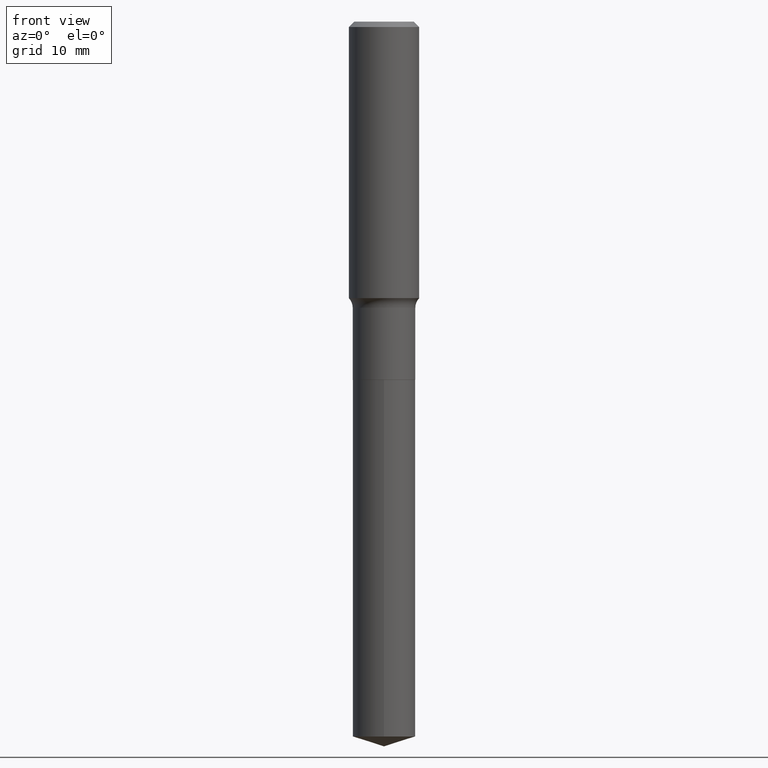
[diagram: clean part render]
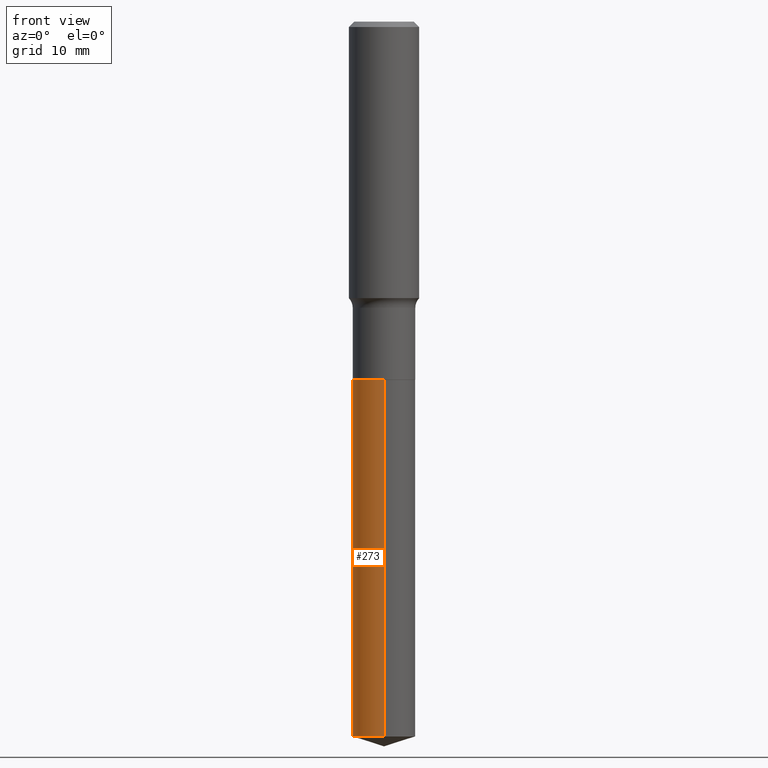
[diagram: same view with one face highlighted and labeled with its STEP entity id]
A machine part, front view. The second image highlights one B-rep face of the part: STEP entity #273.
In plain terms, the highlighted cylindrical surface (edge-blend (fillet) strip) has radius 4.4501 mm, axis along (-0, 0, 1).
Its self-contained STEP definition (entity closure, byte-faithful):
#9 = ORIENTED_EDGE ( 'NONE', *, *, #379, .F. ) ;
#32 = LINE ( 'NONE', #33, #176 ) ;
#33 = CARTESIAN_POINT ( 'NONE',  ( 1.244870873051744200E-15, 0.1751999999999929725, -2.003900000000000237 ) ) ;
#67 = CARTESIAN_POINT ( 'NONE',  ( 4.900474940714395139E-29, -6.996579454907778893E-15, -2.003899999999999793 ) ) ;
#75 = DIRECTION ( 'NONE',  ( -6.982962677686265133E-15, -1.000000000000000000, 3.118547937972903315E-15 ) ) ;
#82 = VERTEX_POINT ( 'NONE', #305 ) ;
#87 = DIRECTION ( 'NONE',  ( -2.445552792741590533E-29, 3.491361065314085564E-15, 1.000000000000000000 ) ) ;
#95 = DIRECTION ( 'NONE',  ( -2.445552792741590533E-29, 3.491361065314085564E-15, 1.000000000000000000 ) ) ;
#139 = CARTESIAN_POINT ( 'NONE',  ( 4.900474940714395139E-29, -6.996579454907778893E-15, -2.003899999999999793 ) ) ;
#153 = AXIS2_PLACEMENT_3D ( 'NONE', #458, #452, #75 ) ;
#176 = VECTOR ( 'NONE', #95, 39.37007874015748143 ) ;
#178 = DIRECTION ( 'NONE',  ( -2.445552792741590533E-29, 3.491361065314085564E-15, 1.000000000000000000 ) ) ;
#180 = CIRCLE ( 'NONE', #153, 0.1751999999999999946 ) ;
#182 = VECTOR ( 'NONE', #87, 39.37007874015748143 ) ;
#219 = CIRCLE ( 'NONE', #365, 0.1751999999999999946 ) ;
#221 = DIRECTION ( 'NONE',  ( -2.445552792741590533E-29, 3.491361065314085564E-15, 1.000000000000000000 ) ) ;
#232 = LINE ( 'NONE', #302, #182 ) ;
#239 = FACE_OUTER_BOUND ( 'NONE', #491, .T. ) ;
#248 = ORIENTED_EDGE ( 'NONE', *, *, #251, .T. ) ;
#251 = EDGE_CURVE ( 'NONE', #82, #476, #180, .T. ) ;
#271 = AXIS2_PLACEMENT_3D ( 'NONE', #67, #221, #444 ) ;
#273 = ADVANCED_FACE ( 'NONE', ( #239 ), #350, .T. ) ;
#302 = CARTESIAN_POINT ( 'NONE',  ( -1.223415061130584771E-15, -0.1752000000000069890, -2.003899999999999348 ) ) ;
#305 = CARTESIAN_POINT ( 'NONE',  ( 1.244870873051792715E-15, 0.1751999999999859225, -3.999859652188403558 ) ) ;
#332 = VERTEX_POINT ( 'NONE', #333 ) ;
#333 = CARTESIAN_POINT ( 'NONE',  ( -1.223415061130584771E-15, -0.1752000000000069890, -2.003899999999999348 ) ) ;
#337 = ORIENTED_EDGE ( 'NONE', *, *, #386, .F. ) ;
#350 = CYLINDRICAL_SURFACE ( 'NONE', #271, 0.1751999999999999946 ) ;
#365 = AXIS2_PLACEMENT_3D ( 'NONE', #139, #178, #370 ) ;
#370 = DIRECTION ( 'NONE',  ( -6.982962677686265133E-15, -1.000000000000000000, 3.118547937972903315E-15 ) ) ;
#372 = VERTEX_POINT ( 'NONE', #373 ) ;
#373 = CARTESIAN_POINT ( 'NONE',  ( 1.244870873051793503E-15, 0.1751999999999930280, -2.003900000000000237 ) ) ;
#379 = EDGE_CURVE ( 'NONE', #82, #372, #32, .T. ) ;
#386 = EDGE_CURVE ( 'NONE', #372, #332, #219, .T. ) ;
#400 = EDGE_CURVE ( 'NONE', #476, #332, #232, .T. ) ;
#444 = DIRECTION ( 'NONE',  ( -6.982962677686265133E-15, -1.000000000000000000, 3.118547937972903315E-15 ) ) ;
#452 = DIRECTION ( 'NONE',  ( -2.445552792741590533E-29, 3.491361065314085564E-15, 1.000000000000000000 ) ) ;
#458 = CARTESIAN_POINT ( 'NONE',  ( 9.781699642323277748E-29, -1.396519527249621453E-14, -3.999859652188403114 ) ) ;
#470 = CARTESIAN_POINT ( 'NONE',  ( -1.223415061130535270E-15, -0.1752000000000139279, -3.999859652188402226 ) ) ;
#476 = VERTEX_POINT ( 'NONE', #470 ) ;
#483 = ORIENTED_EDGE ( 'NONE', *, *, #400, .T. ) ;
#491 = EDGE_LOOP ( 'NONE', ( #9, #248, #483, #337 ) ) ;